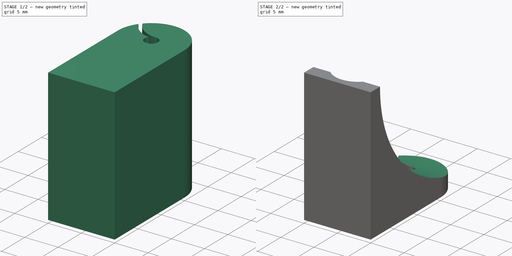
[diagram: build sequence overview — one tinted view per stage of 2, left to right]
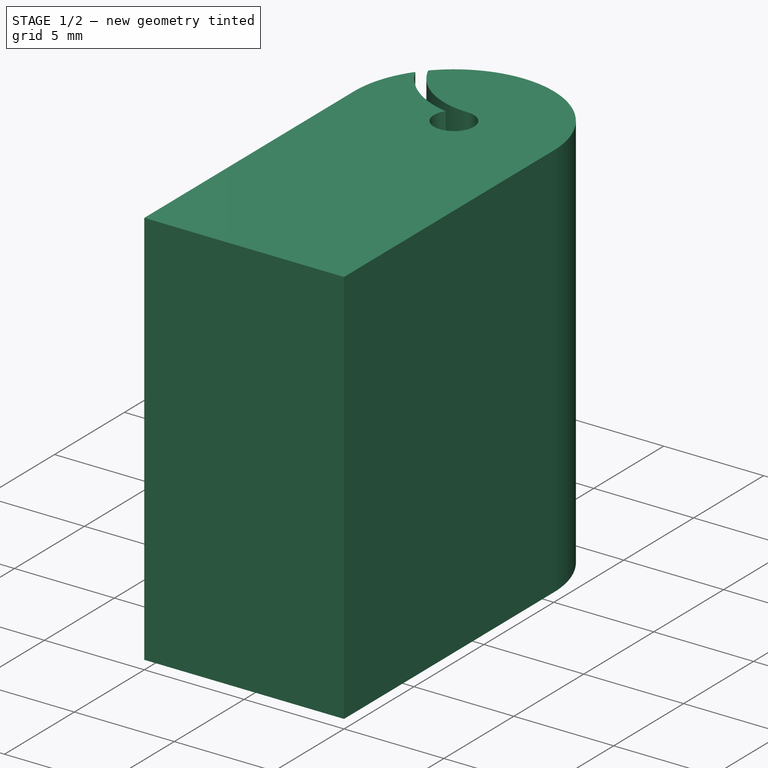
[diagram: stage 1 of 2 — iso view after this stage's code; geometry added in this stage tinted green]
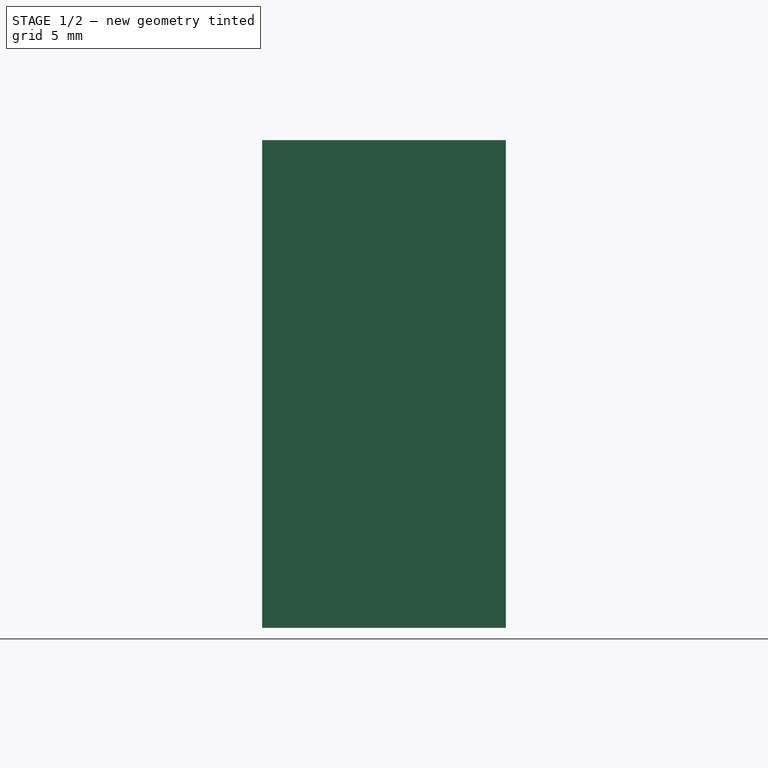
[diagram: stage 1 of 2 — front view after this stage's code; geometry added in this stage tinted green]
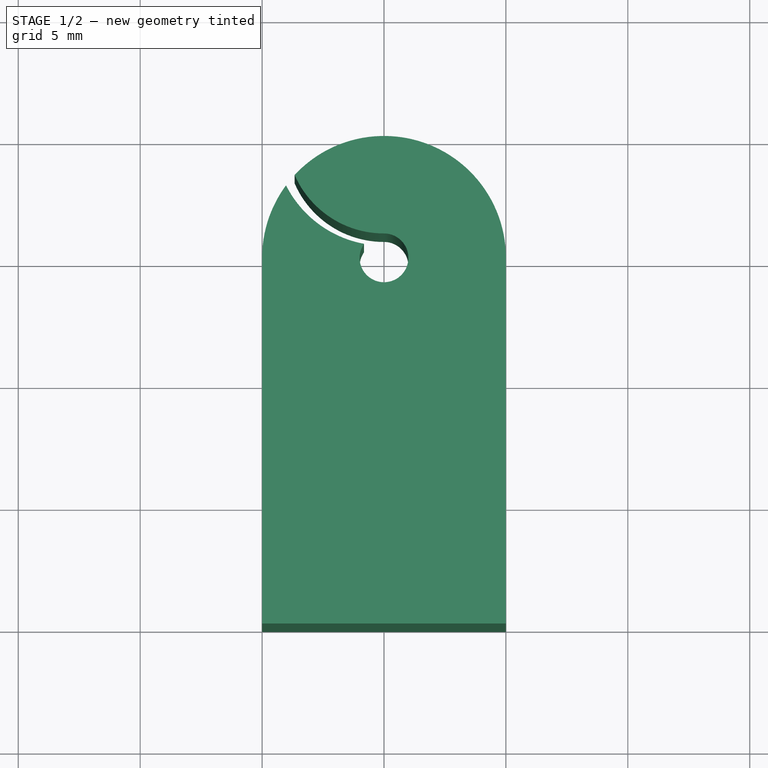
[diagram: stage 1 of 2 — top view after this stage's code; geometry added in this stage tinted green]
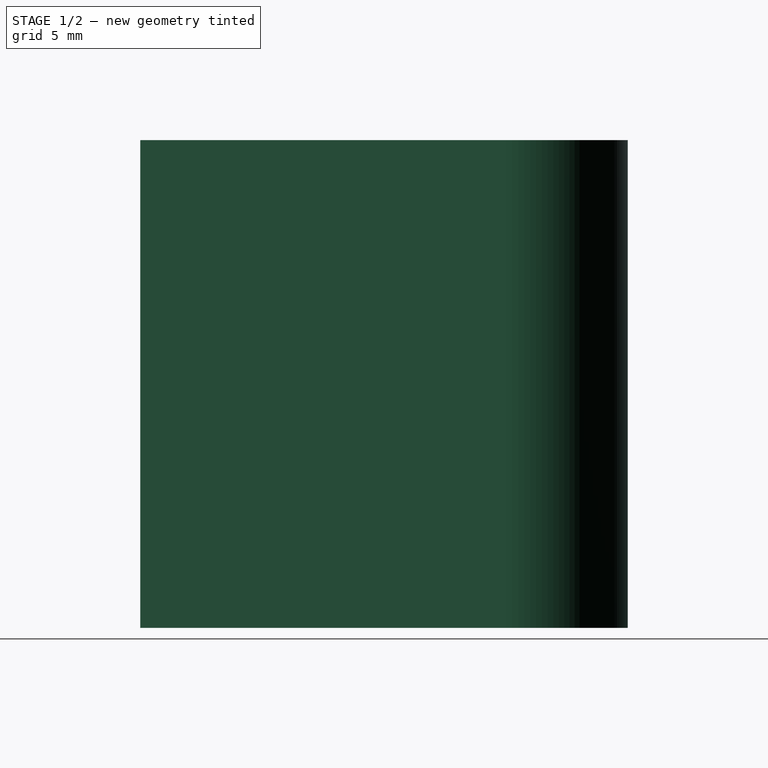
[diagram: stage 1 of 2 — right view after this stage's code; geometry added in this stage tinted green]
FCSTD DOCUMENT
Label: ThreadGuide
objects: Sketcher::SketchObject×4, PartDesign::Pocket×3, PartDesign::Pad×1
note: 9 computed .brp shape members not serialized (recipe doc carries the construction recipe); baked Part::Feature solids carry a one-line shape summary decoded from their .brp

FEATURE [Sketcher::SketchObject] Sketch
  sketch-geometry (5):
    g0: LineSegment StartX=0 StartY=0 StartZ=0 EndX=10 EndY=0 EndZ=0
    g1: LineSegment StartX=10 StartY=0 StartZ=0 EndX=10 EndY=15 EndZ=0
    g2: LineSegment StartX=0 StartY=15 StartZ=0 EndX=0 EndY=0 EndZ=0
    g3: ArcOfCircle CenterX=5 CenterY=15 CenterZ=0 NormalX=0 NormalY=0 NormalZ=1 Radius=5 StartAngle=2.78713e-06 EndAngle=3.14159
    g4: Circle CenterX=5 CenterY=15 CenterZ=0 NormalX=0 NormalY=0 NormalZ=1 Radius=1
  constraints (15):
    c: Coincident(g0,g1)
    c: Coincident(g2,g0)
    c: Horizontal(g0)
    c: Vertical(g1)
    c: Vertical(g2)
    c: Coincident(g1,g3)
    c: DistanceX(g0) = 10
    c: Tangent(g3,g1)
    c: DistanceY(g1) = 15
    c: DistanceX(g0) = 0
    c: DistanceY(g0) = 0
    c: Equal(g2,g1)
    c: Coincident(g3,g2)
    c: Coincident(g4,g3)
    c: Radius(g4) = 1
FEATURE [PartDesign::Pad] Pad
  Length = 20
  MirroredExtent = false
  Sketch = -> Sketch
FEATURE [Sketcher::SketchObject] Sketch001
  Placement = pos=(0,0,20) rot=(0,0,1;0rad)
  Support = -> Pad [Face7]
  sketch-geometry (6):
    g0: ArcOfCircle CenterX=5 CenterY=20 CenterZ=0 NormalX=0 NormalY=0 NormalZ=1 Radius=4.5 StartAngle=3.14159 EndAngle=4.71239
    g1: ArcOfCircle CenterX=5 CenterY=20 CenterZ=0 NormalX=0 NormalY=0 NormalZ=1 Radius=4 StartAngle=3.14159 EndAngle=4.71239
    g2: LineSegment StartX=0.5 StartY=20 StartZ=0 EndX=1 EndY=20 EndZ=0
    g3: LineSegment StartX=5 StartY=16 StartZ=0 EndX=5 EndY=15.5 EndZ=0
    g4: LineSegment [constr] StartX=1 StartY=20 StartZ=0 EndX=5 EndY=20 EndZ=0
    g5: LineSegment [constr] StartX=5 StartY=20 StartZ=0 EndX=5 EndY=16 EndZ=0
  constraints (17):
    c: Horizontal(g2)
    c: Vertical(g3)
    c: Coincident(g0,g2)
    c: Coincident(g1,g2)
    c: Coincident(g1,g3)
    c: Coincident(g0,g3)
    c: Coincident(g0,g1)
    c: DistanceX(g2) = 0.5
    c: Horizontal(g4)
    c: Coincident(g0,g4)
    c: Vertical(g5)
    c: Coincident(g5,g0)
    c: Coincident(g1,g5)
    c: Coincident(g1,g4)
    c: DistanceX(g0) = 5
    c: DistanceY(g0) = 20
    c: DistanceY(g5) = -4
FEATURE [PartDesign::Pocket] Pocket
  Length = 20
  Sketch = -> Sketch001
  Type = 0
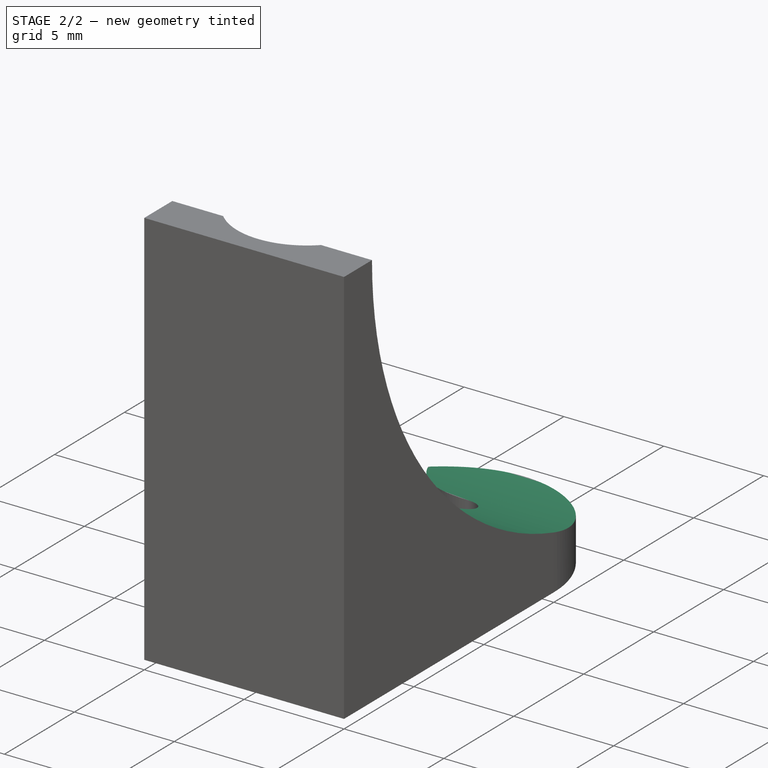
[diagram: stage 2 of 2 — iso view after this stage's code; geometry added in this stage tinted green]
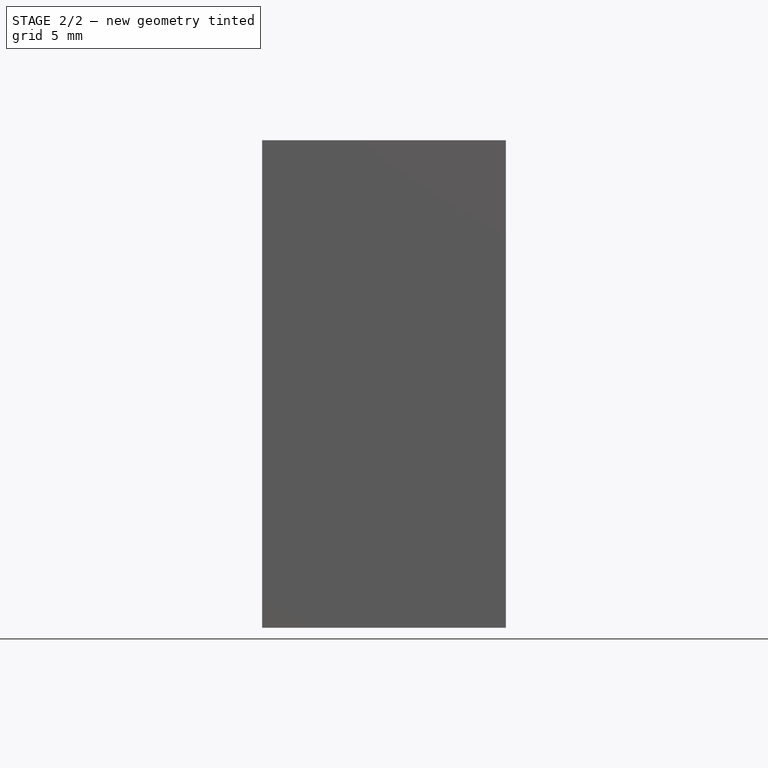
[diagram: stage 2 of 2 — front view after this stage's code; geometry added in this stage tinted green]
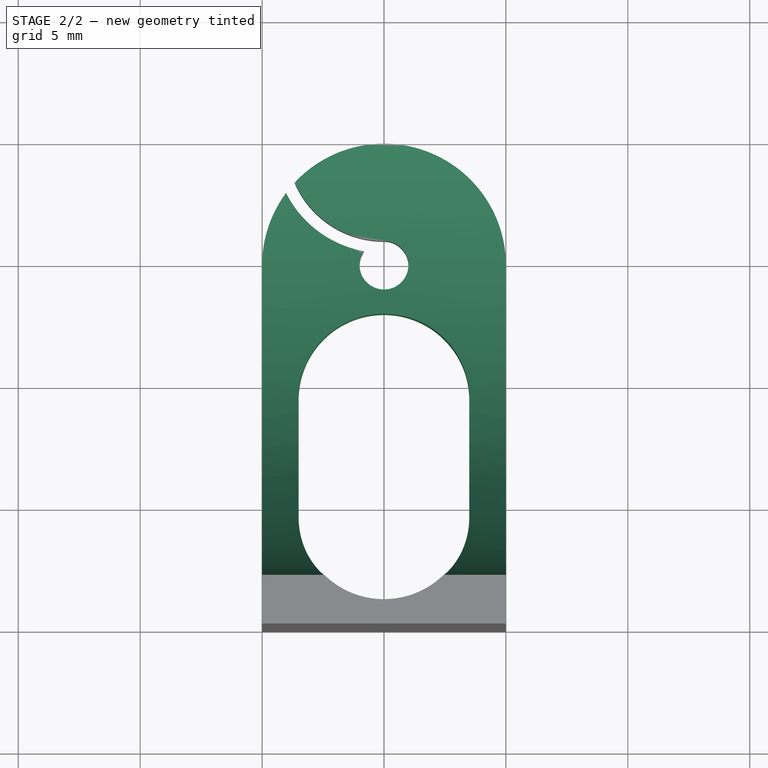
[diagram: stage 2 of 2 — top view after this stage's code; geometry added in this stage tinted green]
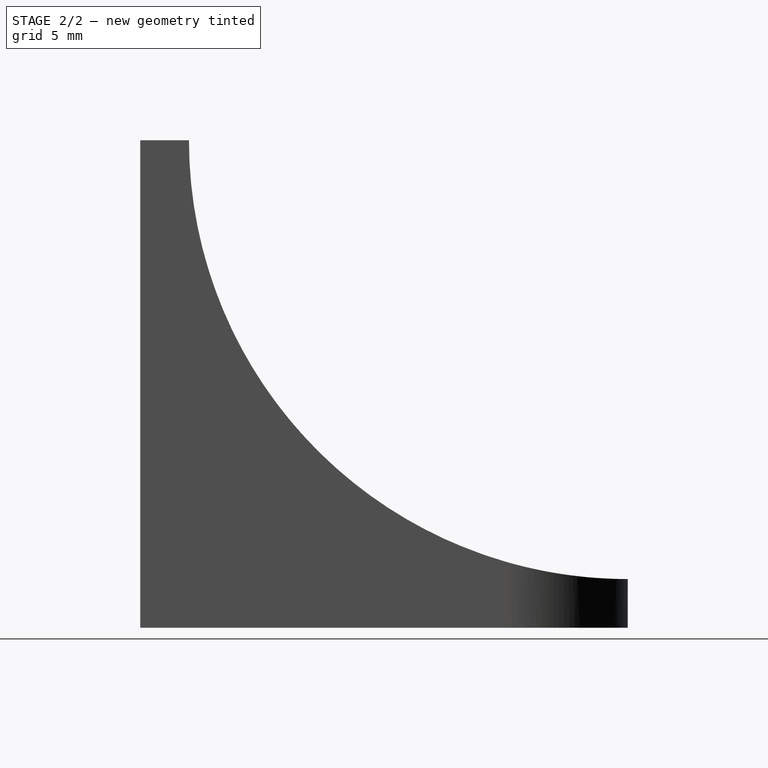
[diagram: stage 2 of 2 — right view after this stage's code; geometry added in this stage tinted green]
FEATURE [Sketcher::SketchObject] Sketch002
  Placement = pos=(10,0,0) rot=(0.57735,0.57735,0.57735;2.0944rad)
  Support = -> Pocket [Face3]
  sketch-geometry (3):
    g0: ArcOfCircle CenterX=20 CenterY=20 CenterZ=0 NormalX=0 NormalY=0 NormalZ=1 Radius=18 StartAngle=3.14159 EndAngle=4.71239
    g1: LineSegment StartX=2 StartY=20 StartZ=0 EndX=20 EndY=20 EndZ=0
    g2: LineSegment StartX=20 StartY=20 StartZ=0 EndX=20 EndY=2 EndZ=0
  constraints (9):
    c: Horizontal(g1)
    c: Coincident(g1,g2)
    c: Vertical(g2)
    c: Coincident(g2,g0)
    c: Coincident(g0,g1)
    c: DistanceX(g1) = 18
    c: DistanceX(g0) = 20
    c: DistanceY(g0) = 20
    c: Coincident(g1,g0)
FEATURE [PartDesign::Pocket] Pocket001
  Length = 10
  Sketch = -> Sketch002
  Type = 0
FEATURE [Sketcher::SketchObject] Sketch003
  Placement = pos=(0,0,0) rot=(1,0,0;3.14159rad)
  Support = -> Pocket001 [Face4]
  sketch-geometry (8):
    g0: ArcOfCircle CenterX=4.99763 CenterY=-4.5 CenterZ=0 NormalX=0 NormalY=0 NormalZ=1 Radius=3.5 StartAngle=0 EndAngle=3.14159
    g1: ArcOfCircle CenterX=4.99763 CenterY=-9.5 CenterZ=0 NormalX=0 NormalY=0 NormalZ=1 Radius=3.5 StartAngle=3.14159 EndAngle=6.28319
    g2: LineSegment [constr] StartX=1.49763 StartY=-4.5 StartZ=0 EndX=4.99763 EndY=-4.5 EndZ=0
    g3: LineSegment [constr] StartX=4.99763 StartY=-4.5 StartZ=0 EndX=8.49763 EndY=-4.5 EndZ=0
    g4: LineSegment StartX=8.49763 StartY=-4.5 StartZ=0 EndX=8.49763 EndY=-9.5 EndZ=0
    g5: LineSegment [constr] StartX=8.49763 StartY=-9.5 StartZ=0 EndX=4.99763 EndY=-9.5 EndZ=0
    g6: LineSegment [constr] StartX=4.99763 StartY=-9.5 StartZ=0 EndX=1.49763 EndY=-9.5 EndZ=0
    g7: LineSegment StartX=1.49763 StartY=-9.5 StartZ=0 EndX=1.49763 EndY=-4.5 EndZ=0
  constraints (22):
    c: Horizontal(g2)
    c: Coincident(g2,g3)
    c: Horizontal(g3)
    c: Coincident(g3,g4)
    c: Vertical(g4)
    c: Coincident(g4,g5)
    c: Horizontal(g5)
    c: Coincident(g5,g6)
    c: Horizontal(g6)
    c: Coincident(g6,g7)
    c: Vertical(g7)
    c: Coincident(g7,g2)
    c: Coincident(g0,g2)
    c: Coincident(g1,g5)
    c: Coincident(g1,g6)
    c: Coincident(g4,g1)
    c: Coincident(g0,g3)
    c: Coincident(g0,g2)
    c: DistanceX(g0) = 4.99763
    c: DistanceY(g0) = -4.5
    c: Radius(g0) = 3.5
    c: DistanceY(g4) = -5
FEATURE [PartDesign::Pocket] Pocket002
  Length = 20
  Sketch = -> Sketch003
  Type = 0
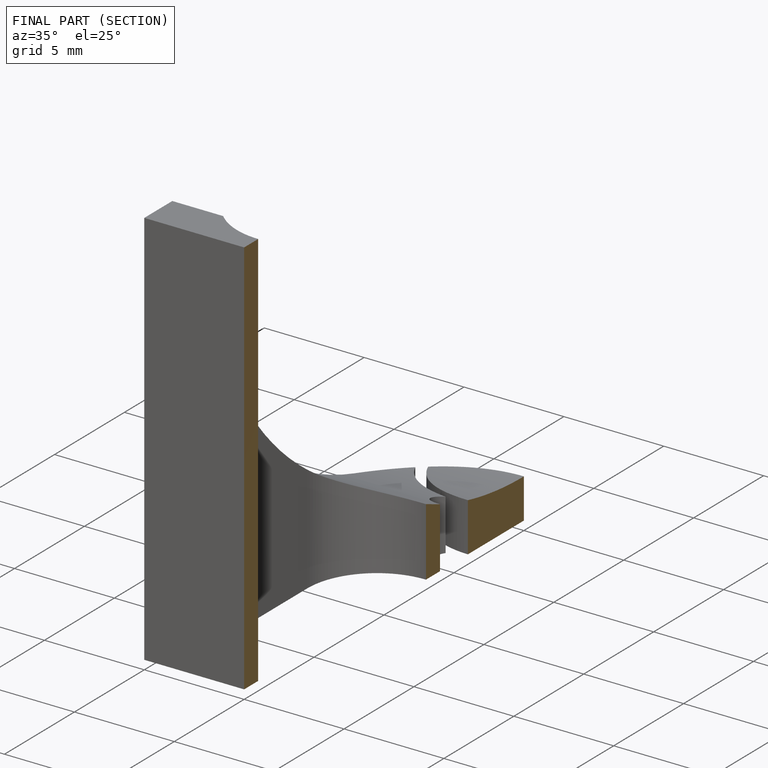
[diagram: finished part — half-section view (interior)]
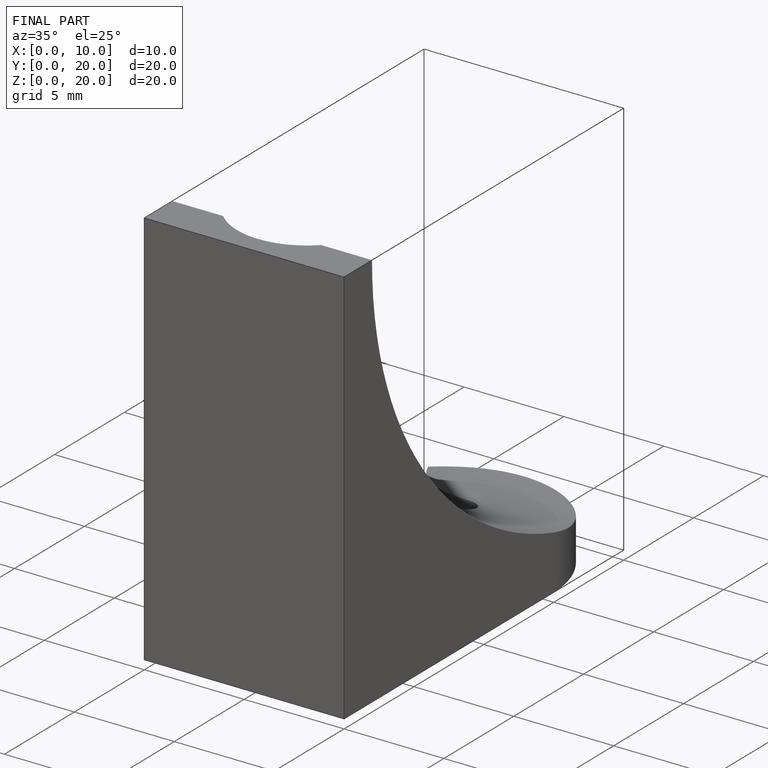
[diagram: finished part — iso view with bounding-box wireframe]
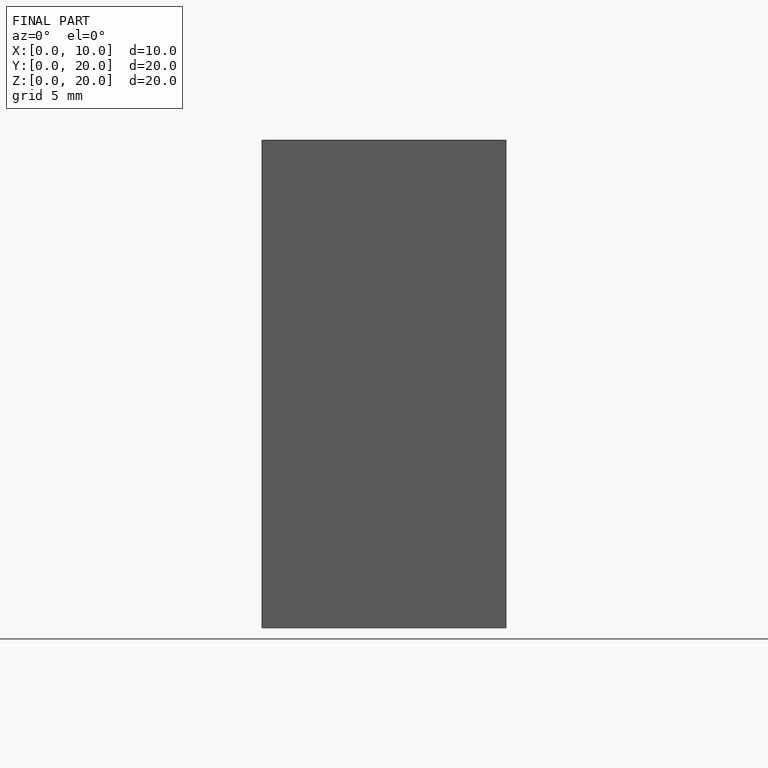
[diagram: finished part — front view with bounding-box wireframe]
